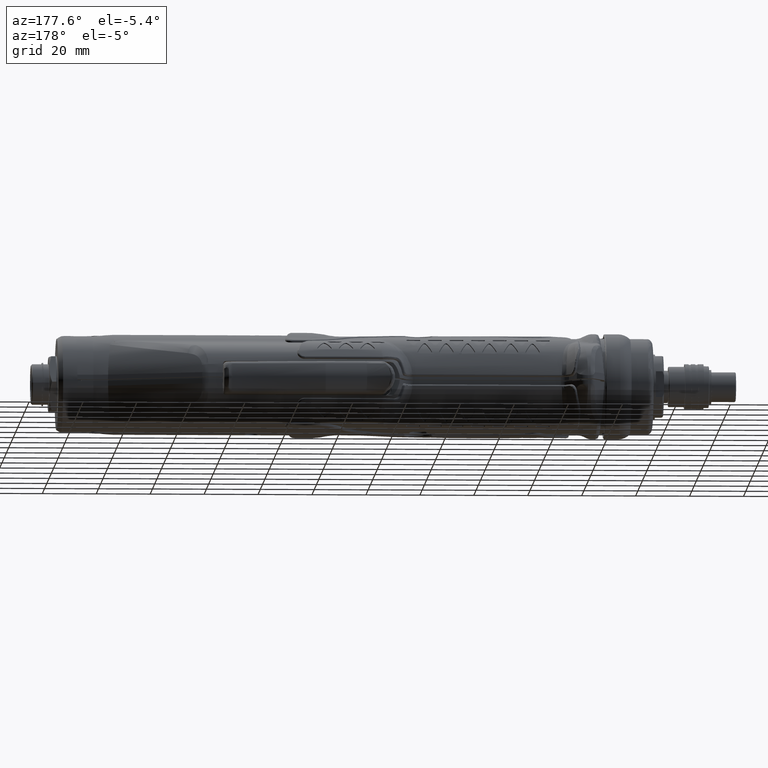
[diagram: clean part render]
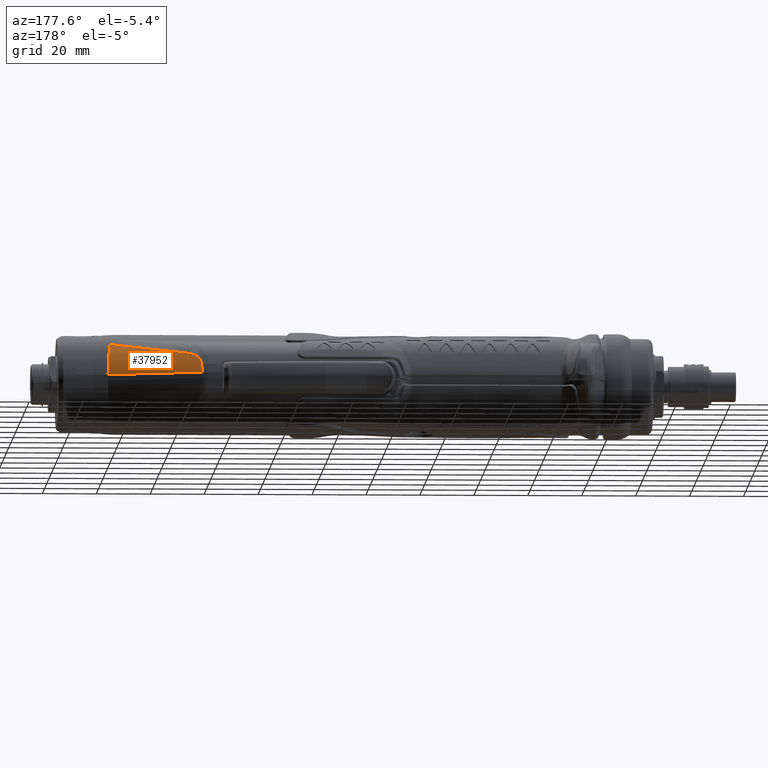
[diagram: same view with one face highlighted and labeled with its STEP entity id]
A machine part, auxiliary view. The second image highlights one B-rep face of the part: STEP entity #37952.
In plain terms, the highlighted cylindrical surface (partial cylindrical patch) has radius 18.5 mm, axis along (0.9511, -0.309, 0).
Its self-contained STEP definition (entity closure, byte-faithful):
#2744=LINE('',#90433,#4658);
#4658=VECTOR('',#49300,10.);
#5389=ELLIPSE('',#41277,164.136842029595,18.5);
#5390=ELLIPSE('',#41278,74.3863500376508,18.5);
#6103=CYLINDRICAL_SURFACE('',#41276,18.5);
#8208=FACE_OUTER_BOUND('',#10605,.T.);
#10605=EDGE_LOOP('',(#33646,#33647,#33648,#33649,#33650,#33651));
#14070=B_SPLINE_CURVE_WITH_KNOTS('',3,(#90435,#90436,#90437,#90438),
 .UNSPECIFIED.,.F.,.F.,(4,4),(6.46428281092812E-17,0.157784808636043),
 .UNSPECIFIED.);
#14071=B_SPLINE_CURVE_WITH_KNOTS('',3,(#90440,#90441,#90442,#90443,#90444,
#90445,#90446),.UNSPECIFIED.,.F.,.F.,(4,1,1,1,4),(0.,0.308681027146935,
0.514468378578224,0.617362054293869,0.720255730009514),.UNSPECIFIED.);
#14072=B_SPLINE_CURVE_WITH_KNOTS('',3,(#90450,#90451,#90452,#90453,#90454,
#90455,#90456,#90457,#90458,#90459,#90460,#90461),.UNSPECIFIED.,.F.,.F.,
(4,2,2,2,2,4),(2.19896874642759,2.24231306512733,2.60756277819123,2.97281249125512,
3.33806220431902,3.50126768915642),.UNSPECIFIED.);
#17537=VERTEX_POINT('',#90431);
#17538=VERTEX_POINT('',#90432);
#17539=VERTEX_POINT('',#90434);
#17540=VERTEX_POINT('',#90439);
#17541=VERTEX_POINT('',#90447);
#17542=VERTEX_POINT('',#90449);
#23018=EDGE_CURVE('',#17537,#17538,#2744,.T.);
#23019=EDGE_CURVE('',#17539,#17538,#14070,.T.);
#23020=EDGE_CURVE('',#17540,#17539,#14071,.T.);
#23021=EDGE_CURVE('',#17541,#17540,#5389,.T.);
#23022=EDGE_CURVE('',#17541,#17542,#14072,.T.);
#23023=EDGE_CURVE('',#17542,#17537,#5390,.T.);
#33646=ORIENTED_EDGE('',*,*,#23018,.T.);
#33647=ORIENTED_EDGE('',*,*,#23019,.F.);
#33648=ORIENTED_EDGE('',*,*,#23020,.F.);
#33649=ORIENTED_EDGE('',*,*,#23021,.F.);
#33650=ORIENTED_EDGE('',*,*,#23022,.T.);
#33651=ORIENTED_EDGE('',*,*,#23023,.T.);
#37952=ADVANCED_FACE('',(#8208),#6103,.T.);
#41276=AXIS2_PLACEMENT_3D('',#90430,#49298,#49299);
#41277=AXIS2_PLACEMENT_3D('',#90448,#49301,#49302);
#41278=AXIS2_PLACEMENT_3D('',#90462,#49303,#49304);
#49298=DIRECTION('center_axis',(0.951056516295154,-0.309016994374948,0.));
#49299=DIRECTION('ref_axis',(0.,0.,-1.));
#49300=DIRECTION('',(-0.951056516295153,0.309016994374948,0.));
#49301=DIRECTION('center_axis',(-0.0463543226266616,0.222075977995087,0.973926864179929));
#49302=DIRECTION('ref_axis',(0.951897533098554,-0.285807841767767,0.110476079152631));
#49303=DIRECTION('center_axis',(-0.0622810236971403,-0.996496379154252,
-0.0558215049931637));
#49304=DIRECTION('ref_axis',(-0.997899744841503,0.0631716503325638,-0.0143332424636761));
#90430=CARTESIAN_POINT('Origin',(180.5,0.,0.));
#90431=CARTESIAN_POINT('',(183.915684358633,18.2210012689245,2.062175245817));
#90432=CARTESIAN_POINT('',(149.557641825209,29.3846060118058,2.062175248491));
#90433=CARTESIAN_POINT('',(186.181186746477,17.4848949212511,2.06217524581696));
#90434=CARTESIAN_POINT('',(149.599930173453,28.8354982148208,4.76602625719746));
#90435=CARTESIAN_POINT('Ctrl Pts',(149.599930173453,28.8354982148208,4.76602625719746));
#90436=CARTESIAN_POINT('Ctrl Pts',(149.577827883822,29.0891729935687,3.88677247717592));
#90437=CARTESIAN_POINT('Ctrl Pts',(149.56501929258,29.2738269870595,2.98025502979122));
#90438=CARTESIAN_POINT('Ctrl Pts',(149.557632210556,29.3845936272099,2.06217383164917));
#90439=CARTESIAN_POINT('',(154.790270701882,25.0189124449168,9.54140402742413));
#90440=CARTESIAN_POINT('Ctrl Pts',(154.790270701882,25.0189124449167,9.54140402742417));
#90441=CARTESIAN_POINT('Ctrl Pts',(153.840525843969,25.4129942829573,9.40634163825758));
#90442=CARTESIAN_POINT('Ctrl Pts',(152.294811522589,26.1564736194831,9.0272926447702));
#90443=CARTESIAN_POINT('Ctrl Pts',(150.642607919004,27.3413496204437,7.84304309738073));
#90444=CARTESIAN_POINT('Ctrl Pts',(149.815071807791,28.2448085948386,6.39168610833066));
#90445=CARTESIAN_POINT('Ctrl Pts',(149.614343384976,28.6700733513796,5.33939991778841));
#90446=CARTESIAN_POINT('Ctrl Pts',(149.599930173453,28.8354982148208,4.76602625719746));
#90447=CARTESIAN_POINT('',(182.91875585956,12.1528862014161,13.8139139963033));
#90448=CARTESIAN_POINT('Origin',(45.1500188574916,43.9778747579535,1.11022302462516E-15));
#90449=CARTESIAN_POINT('',(183.919032194364,18.2215921345859,2.04789218171269));
#90450=CARTESIAN_POINT('Ctrl Pts',(182.918755859549,12.1528862009708,13.813913995803));
#90451=CARTESIAN_POINT('Ctrl Pts',(182.937315779265,12.2623812527836,13.7160399644067));
#90452=CARTESIAN_POINT('Ctrl Pts',(182.95543029486,12.369527576382,13.617924650497));
#90453=CARTESIAN_POINT('Ctrl Pts',(183.121841489052,13.3559440331426,12.6936521273259));
#90454=CARTESIAN_POINT('Ctrl Pts',(183.259322703527,14.1861254547642,11.7513484066357));
#90455=CARTESIAN_POINT('Ctrl Pts',(183.500825393243,15.652737208523,9.68388415163517));
#90456=CARTESIAN_POINT('Ctrl Pts',(183.604788299561,16.2892741002512,8.55879236911776));
#90457=CARTESIAN_POINT('Ctrl Pts',(183.771720551616,17.3136302826363,6.20069897832864));
#90458=CARTESIAN_POINT('Ctrl Pts',(183.834813544759,17.7023488936184,4.96562348534161));
#90459=CARTESIAN_POINT('Ctrl Pts',(183.894764618926,18.0718888055319,3.16316883634766));
#90460=CARTESIAN_POINT('Ctrl Pts',(183.908996734186,18.1596787088147,2.60439707696109));
#90461=CARTESIAN_POINT('Ctrl Pts',(183.919032194363,18.2215921345804,2.04789218171238));
#90462=CARTESIAN_POINT('Origin',(109.811708433897,22.9680182228814,0.));